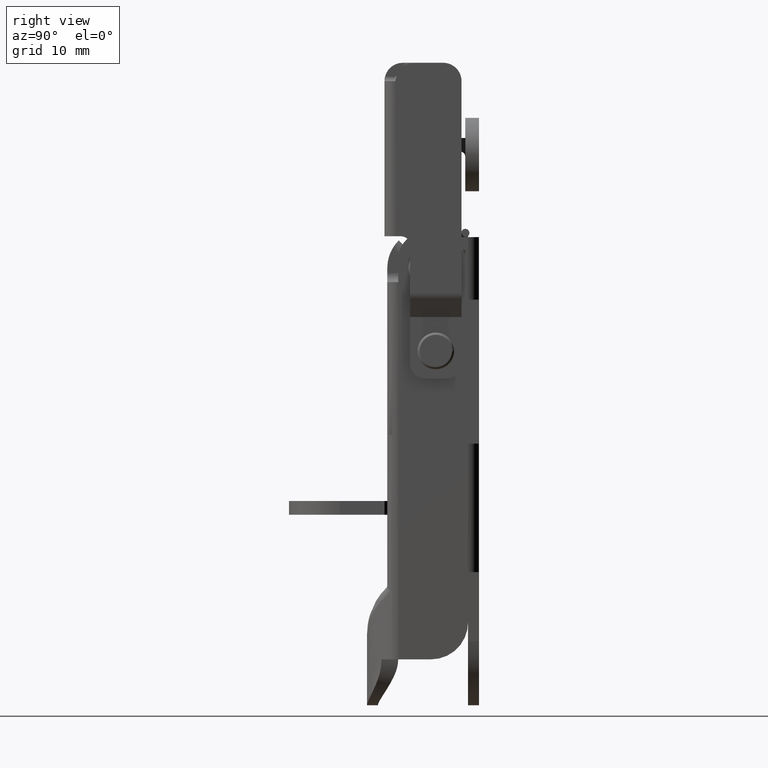
[diagram: clean part render]
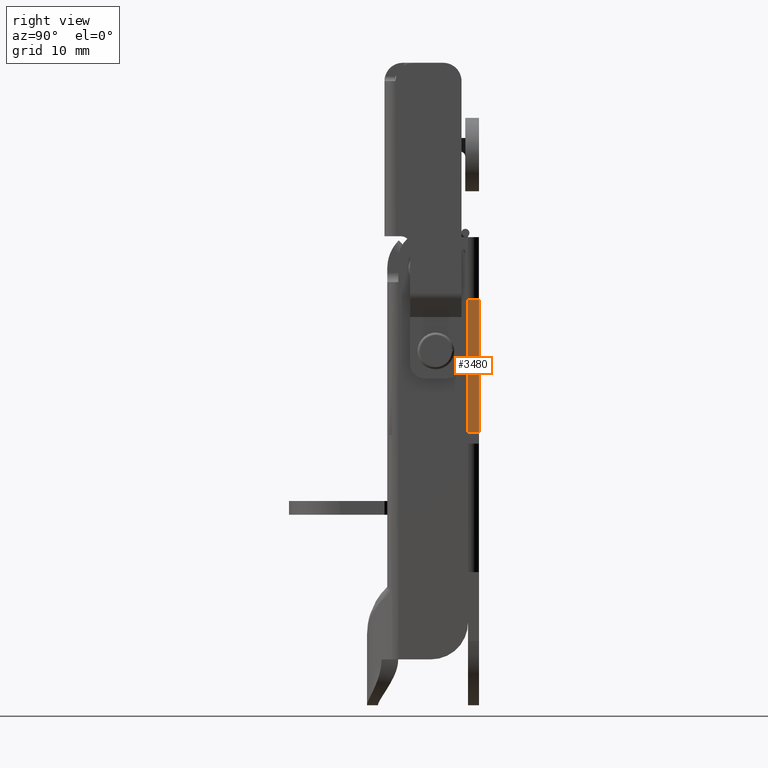
[diagram: same view with one face highlighted and labeled with its STEP entity id]
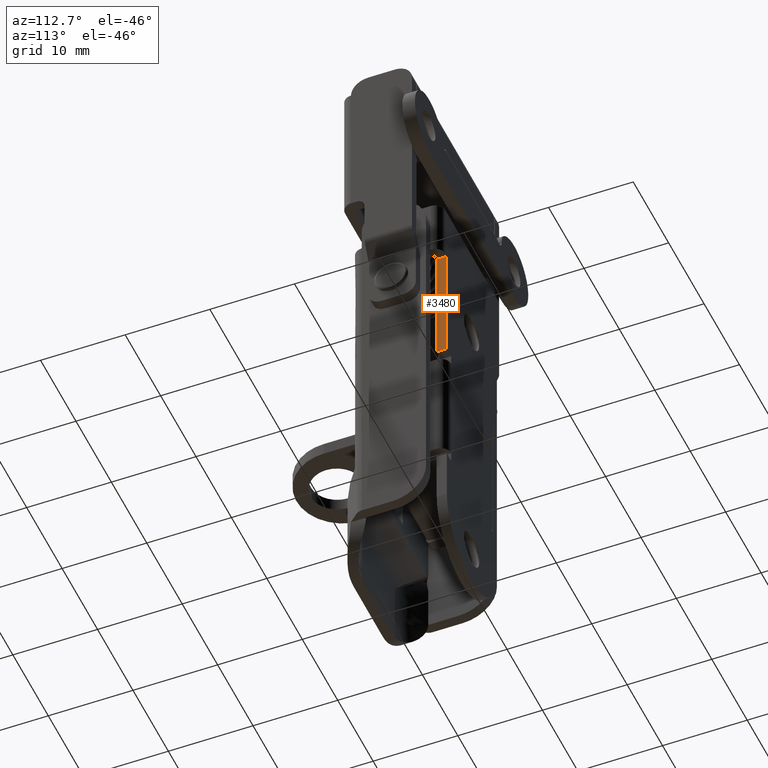
[diagram: same view with one face highlighted and labeled with its STEP entity id]
A machine part, right view. The second image highlights one B-rep face of the part: STEP entity #3480.
A second angle (auxiliary view) of the same face is appended — the face is thin or edge-on in the first view.
In plain terms, the highlighted face is a freeform B-spline surface patch.
Its self-contained STEP definition (entity closure, byte-faithful):
#3422=CARTESIAN_POINT('',(7.0,0.0,-9.299999999999701));
#3423=VERTEX_POINT('',#3422);
#3431=CARTESIAN_POINT('',(7.0,-1.199999999999868,-9.299999999999701));
#3432=VERTEX_POINT('',#3431);
#3433=CARTESIAN_POINT('',(7.0,-1.199999999999868,-9.299999999999701));
#3434=CARTESIAN_POINT('',(7.0,0.0,-9.299999999999701));
#3435=QUASI_UNIFORM_CURVE('',1,(#3433,#3434),.UNSPECIFIED.,.F.,.U.);
#3436=EDGE_CURVE('',#3432,#3423,#3435,.T.);
#3453=CARTESIAN_POINT('',(7.0,-1.259939997674028,5.924274971919311));
#3454=CARTESIAN_POINT('',(7.0,-1.259939997674028,-10.024275360817279));
#3455=CARTESIAN_POINT('',(7.0,0.059940029860669,5.924274971919311));
#3456=CARTESIAN_POINT('',(7.0,0.059940029860669,-10.024275360817279));
#3457=B_SPLINE_SURFACE_WITH_KNOTS('',1,1,((#3453,#3455),(#3454,#3456)),.UNSPECIFIED.,.F.,.F.,.U.,(2,2),(2,2),(0.0,15.948550332736589),(0.041708334948495,0.958291687403247),.UNSPECIFIED.);
#3458=CARTESIAN_POINT('',(7.0,0.0,5.200000000022039));
#3459=VERTEX_POINT('',#3458);
#3460=CARTESIAN_POINT('',(7.0,0.0,5.200000000022039));
#3461=CARTESIAN_POINT('',(7.0,0.0,-9.299999999999701));
#3462=QUASI_UNIFORM_CURVE('',1,(#3460,#3461),.UNSPECIFIED.,.F.,.U.);
#3463=EDGE_CURVE('',#3459,#3423,#3462,.T.);
#3464=ORIENTED_EDGE('',*,*,#3463,.F.);
#3465=CARTESIAN_POINT('',(7.0,-1.199999999999868,5.200000000022039));
#3466=VERTEX_POINT('',#3465);
#3467=CARTESIAN_POINT('',(7.0,-1.199999999999868,5.200000000022039));
#3468=CARTESIAN_POINT('',(7.0,0.0,5.200000000022039));
#3469=QUASI_UNIFORM_CURVE('',1,(#3467,#3468),.UNSPECIFIED.,.F.,.U.);
#3470=EDGE_CURVE('',#3466,#3459,#3469,.T.);
#3471=ORIENTED_EDGE('',*,*,#3470,.F.);
#3472=CARTESIAN_POINT('',(7.0,-1.199999999999868,5.200000000022039));
#3473=CARTESIAN_POINT('',(7.0,-1.199999999999868,-9.299999999999701));
#3474=QUASI_UNIFORM_CURVE('',1,(#3472,#3473),.UNSPECIFIED.,.F.,.U.);
#3475=EDGE_CURVE('',#3466,#3432,#3474,.T.);
#3476=ORIENTED_EDGE('',*,*,#3475,.T.);
#3477=ORIENTED_EDGE('',*,*,#3436,.T.);
#3478=EDGE_LOOP('',(#3464,#3471,#3476,#3477));
#3479=FACE_OUTER_BOUND('',#3478,.T.);
#3480=ADVANCED_FACE('',(#3479),#3457,.T.);